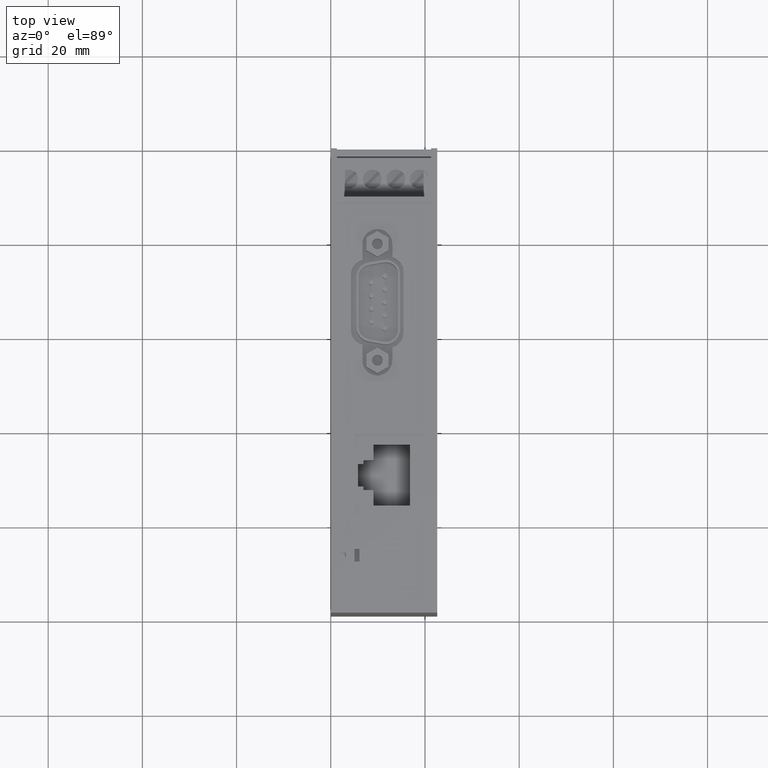
[diagram: clean part render]
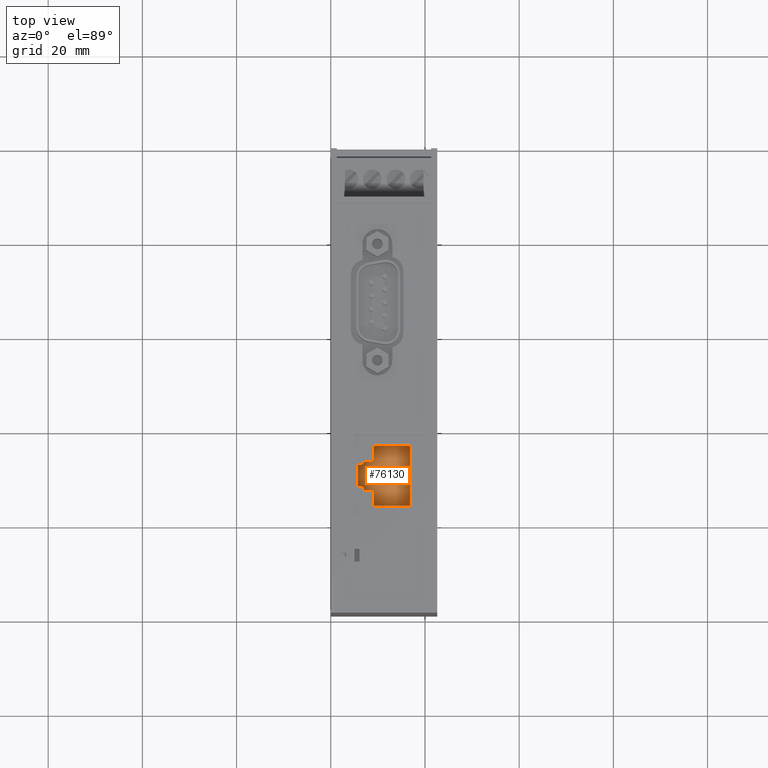
[diagram: same view with one face highlighted and labeled with its STEP entity id]
A machine part, top view. The second image highlights one B-rep face of the part: STEP entity #76130.
In plain terms, the highlighted planar face has unit normal (0, -0, 1).
Its self-contained STEP definition (entity closure, byte-faithful):
#75100=CARTESIAN_POINT('',(-37.938647992015,94.9427999999202,
5.25339964583749));
#75110=DIRECTION('',(-1.88186390340434E-14,1.,1.58094699505679E-12));
#75120=DIRECTION('',(-1.,-1.88186390340675E-14,1.52810122827484E-14));
#75130=AXIS2_PLACEMENT_3D('',#75100,#75110,#75120);
#75140=PLANE('',#75130);
#75150=CARTESIAN_POINT('',(24.,94.9427999999153,9.1033996458548));
#75160=DIRECTION('',(-1.,-1.88186390340675E-14,1.52810122827484E-14));
#75170=VECTOR('',#75160,1.);
#75180=LINE('',#75150,#75170);
#75190=CARTESIAN_POINT('',(-41.0054000000259,94.9427999999141,
9.10339964585579));
#75200=VERTEX_POINT('',#75190);
#75210=CARTESIAN_POINT('',(-44.3354000000259,94.942799999914,
9.10339964585584));
#75220=VERTEX_POINT('',#75210);
#75230=EDGE_CURVE('',#75200,#75220,#75180,.T.);
#75240=ORIENTED_EDGE('',*,*,#75230,.T.);
#75250=CARTESIAN_POINT('',(-41.005400000026,94.9427999999285,0.));
#75260=DIRECTION('',(1.49537059665561E-14,-1.58094699505679E-12,1.));
#75270=VECTOR('',#75260,1.);
#75280=LINE('',#75250,#75270);
#75290=CARTESIAN_POINT('',(-41.0054000000259,94.9427999999175,
6.95339964585579));
#75300=VERTEX_POINT('',#75290);
#75310=EDGE_CURVE('',#75300,#75200,#75280,.T.);
#75320=ORIENTED_EDGE('',*,*,#75310,.T.);
#75330=CARTESIAN_POINT('',(24.,94.9427999999187,6.9533996458548));
#75340=DIRECTION('',(-1.,-1.88186390340675E-14,1.52810122827484E-14));
#75350=VECTOR('',#75340,1.);
#75360=LINE('',#75330,#75350);
#75370=CARTESIAN_POINT('',(-40.2154000000259,94.9427999999175,
6.95339964585578));
#75380=VERTEX_POINT('',#75370);
#75390=EDGE_CURVE('',#75380,#75300,#75360,.T.);
#75400=ORIENTED_EDGE('',*,*,#75390,.T.);
#75410=CARTESIAN_POINT('',(-40.215400000026,94.9427999999285,0.));
#75420=DIRECTION('',(1.52810122827781E-14,-1.58094699505679E-12,1.));
#75430=VECTOR('',#75420,1.);
#75440=LINE('',#75410,#75430);
#75450=CARTESIAN_POINT('',(-40.215400000026,94.9427999999194,
5.75339964585586));
#75460=VERTEX_POINT('',#75450);
#75470=EDGE_CURVE('',#75460,#75380,#75440,.T.);
#75480=ORIENTED_EDGE('',*,*,#75470,.T.);
#75490=CARTESIAN_POINT('',(24.,94.9427999999206,5.75339964585488));
#75500=DIRECTION('',(-1.,-1.88186390340675E-14,1.52810122827484E-14));
#75510=VECTOR('',#75500,1.);
#75520=LINE('',#75490,#75510);
#75530=CARTESIAN_POINT('',(-35.415400000026,94.9427999999195,
5.75339964585579));
#75540=VERTEX_POINT('',#75530);
#75550=EDGE_CURVE('',#75540,#75460,#75520,.T.);
#75560=ORIENTED_EDGE('',*,*,#75550,.T.);
#75570=CARTESIAN_POINT('',(-35.415400000026,94.9427999999286,0.));
#75580=DIRECTION('',(-1.52810122827781E-14,1.58094699505679E-12,-1.));
#75590=VECTOR('',#75580,1.);
#75600=LINE('',#75570,#75590);
#75610=CARTESIAN_POINT('',(-35.4154000000259,94.9427999999176,
6.95339964585579));
#75620=VERTEX_POINT('',#75610);
#75630=EDGE_CURVE('',#75620,#75540,#75600,.T.);
#75640=ORIENTED_EDGE('',*,*,#75630,.T.);
#75650=CARTESIAN_POINT('',(24.,94.9427999999187,6.95339964585488));
#75660=DIRECTION('',(-1.,-1.88186390340675E-14,1.52810122827484E-14));
#75670=VECTOR('',#75660,1.);
#75680=LINE('',#75650,#75670);
#75690=CARTESIAN_POINT('',(-34.6254000000259,94.9427999999176,
6.95339964585578));
#75700=VERTEX_POINT('',#75690);
#75710=EDGE_CURVE('',#75700,#75620,#75680,.T.);
#75720=ORIENTED_EDGE('',*,*,#75710,.T.);
#75730=CARTESIAN_POINT('',(-34.625400000026,94.9427999999286,0.));
#75740=DIRECTION('',(-1.52810122827781E-14,1.58094699505679E-12,-1.));
#75750=VECTOR('',#75740,1.);
#75760=LINE('',#75730,#75750);
#75770=CARTESIAN_POINT('',(-34.6254000000259,94.9427999999142,
9.1033996458557));
#75780=VERTEX_POINT('',#75770);
#75790=EDGE_CURVE('',#75780,#75700,#75760,.T.);
#75800=ORIENTED_EDGE('',*,*,#75790,.T.);
#75810=CARTESIAN_POINT('',(24.,94.9427999999153,9.1033996458548));
#75820=DIRECTION('',(-1.,-1.88186390340675E-14,1.52810122827484E-14));
#75830=VECTOR('',#75820,1.);
#75840=LINE('',#75810,#75830);
#75850=CARTESIAN_POINT('',(-31.2954000000259,94.9427999999143,
9.10339964585565));
#75860=VERTEX_POINT('',#75850);
#75870=EDGE_CURVE('',#75860,#75780,#75840,.T.);
#75880=ORIENTED_EDGE('',*,*,#75870,.T.);
#75890=CARTESIAN_POINT('',(-31.295400000026,94.9427999999287,0.));
#75900=DIRECTION('',(-1.52810122827781E-14,1.58094699505679E-12,-1.));
#75910=VECTOR('',#75900,1.);
#75920=LINE('',#75890,#75910);
#75930=CARTESIAN_POINT('',(-31.2954000000258,94.9427999999021,
16.8033996458557));
#75940=VERTEX_POINT('',#75930);
#75950=EDGE_CURVE('',#75940,#75860,#75920,.T.);
#75960=ORIENTED_EDGE('',*,*,#75950,.T.);
#75970=CARTESIAN_POINT('',(24.,94.9427999999031,16.8033996458549));
#75980=DIRECTION('',(1.,1.88186390340675E-14,-1.52810122827484E-14));
#75990=VECTOR('',#75980,1.);
#76000=LINE('',#75970,#75990);
#76010=CARTESIAN_POINT('',(-44.3354000000258,94.9427999999019,
16.8033996458559));
#76020=VERTEX_POINT('',#76010);
#76030=EDGE_CURVE('',#76020,#75940,#76000,.T.);
#76040=ORIENTED_EDGE('',*,*,#76030,.T.);
#76050=CARTESIAN_POINT('',(-44.335400000026,94.9427999999284,0.));
#76060=DIRECTION('',(1.52810122827781E-14,-1.58094699505679E-12,1.));
#76070=VECTOR('',#76060,1.);
#76080=LINE('',#76050,#76070);
#76090=EDGE_CURVE('',#75220,#76020,#76080,.T.);
#76100=ORIENTED_EDGE('',*,*,#76090,.T.);
#76110=EDGE_LOOP('',(#76100,#76040,#75960,#75880,#75800,#75720,#75640,
#75560,#75480,#75400,#75320,#75240));
#76120=FACE_OUTER_BOUND('',#76110,.T.);
#76130=ADVANCED_FACE('',(#76120),#75140,.T.);